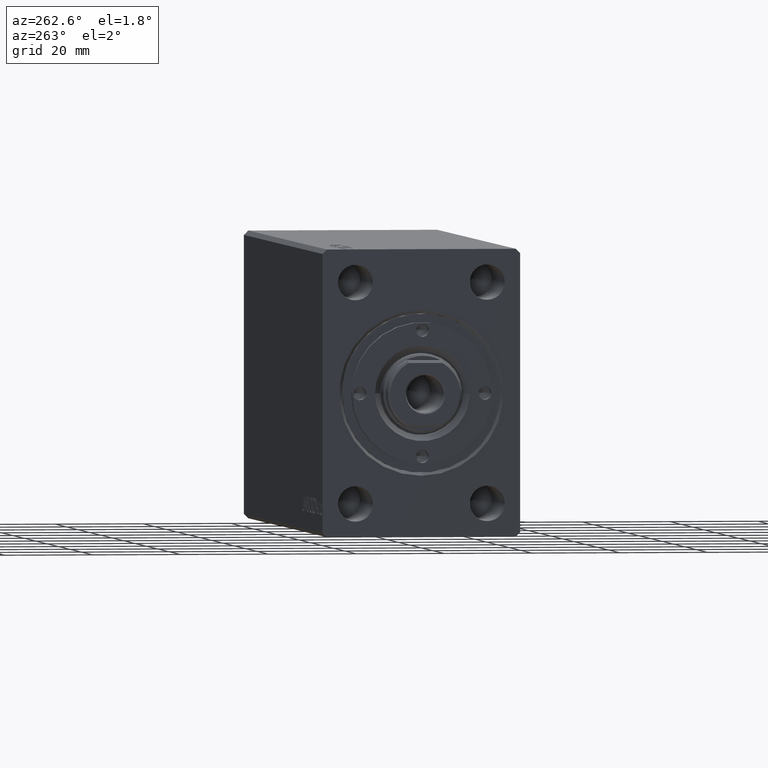
[diagram: clean part render]
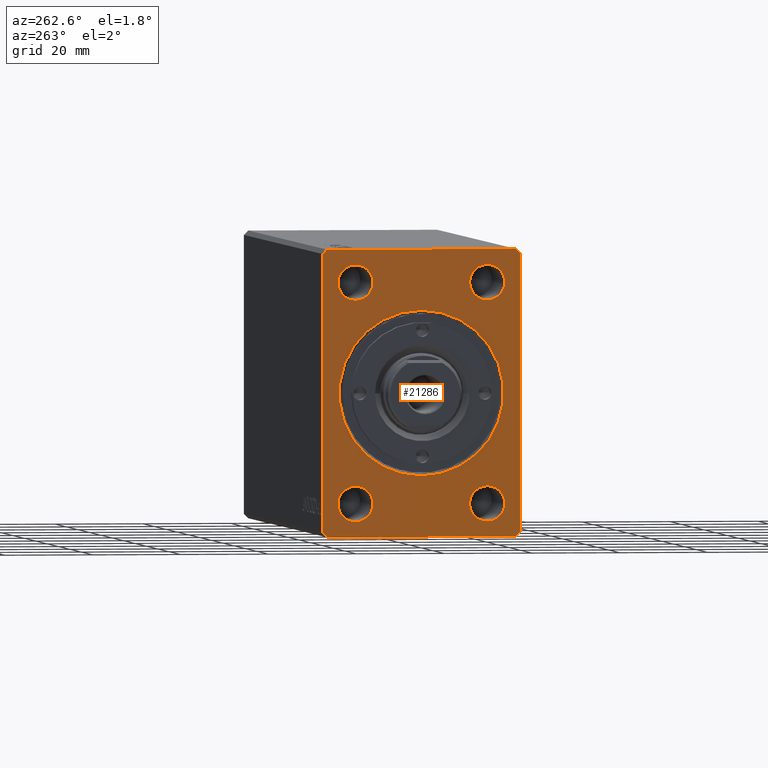
[diagram: same view with one face highlighted and labeled with its STEP entity id]
A machine part, auxiliary view. The second image highlights one B-rep face of the part: STEP entity #21286.
In plain terms, the highlighted planar face has unit normal (1, 0, 0).
Its self-contained STEP definition (entity closure, byte-faithful):
#58 = CIRCLE ( 'NONE', #15715, 18.69999999999999574 ) ;
#239 = LINE ( 'NONE', #41518, #13561 ) ;
#591 = PLANE ( 'NONE',  #6316 ) ;
#715 = CARTESIAN_POINT ( 'NONE',  ( 0.000000000000000000, -22.50000000000001776, 31.50000000000000000 ) ) ;
#2282 = DIRECTION ( 'NONE',  ( 0.000000000000000000, 0.000000000000000000, 1.000000000000000000 ) ) ;
#2330 = EDGE_CURVE ( 'NONE', #8919, #9233, #41937, .T. ) ;
#2888 = CIRCLE ( 'NONE', #27800, 4.000000000000000000 ) ;
#3978 = CARTESIAN_POINT ( 'NONE',  ( 3.061616997868395467E-16, -14.99999999999999645, 28.99999999999999645 ) ) ;
#4094 = CARTESIAN_POINT ( 'NONE',  ( 0.000000000000000000, -21.50000000000001776, -32.50000000000000711 ) ) ;
#4651 = LINE ( 'NONE', #25161, #35643 ) ;
#5145 = CARTESIAN_POINT ( 'NONE',  ( 3.061616997868395467E-16, 15.00000000000000355, 29.00000000000000000 ) ) ;
#5273 = EDGE_CURVE ( 'NONE', #25978, #36808, #29590, .T. ) ;
#6093 = CARTESIAN_POINT ( 'NONE',  ( 0.000000000000000000, 2.290089514405549716E-15, -18.69999999999999574 ) ) ;
#6266 = EDGE_CURVE ( 'NONE', #36808, #31023, #20915, .T. ) ;
#6316 = AXIS2_PLACEMENT_3D ( 'NONE', #27371, #20906, #34734 ) ;
#7111 = CIRCLE ( 'NONE', #27070, 4.000000000000000000 ) ;
#7204 = EDGE_CURVE ( 'NONE', #21809, #29926, #31218, .T. ) ;
#7302 = CARTESIAN_POINT ( 'NONE',  ( 0.000000000000000000, 21.49999999999999645, 32.50000000000000000 ) ) ;
#7731 = VERTEX_POINT ( 'NONE', #17903 ) ;
#8019 = CARTESIAN_POINT ( 'NONE',  ( 3.061616997868395467E-16, -14.99999999999999645, -24.99999999999999645 ) ) ;
#8089 = EDGE_LOOP ( 'NONE', ( #18558, #17726 ) ) ;
#8135 = VERTEX_POINT ( 'NONE', #14065 ) ;
#8270 = DIRECTION ( 'NONE',  ( -1.000000000000000000, -0.000000000000000000, -0.000000000000000000 ) ) ;
#8362 = CARTESIAN_POINT ( 'NONE',  ( 3.061616997868395467E-16, 15.00000000000000355, 25.00000000000000000 ) ) ;
#8386 = CARTESIAN_POINT ( 'NONE',  ( 0.000000000000000000, 21.49999999999999645, -32.50000000000000000 ) ) ;
#8811 = EDGE_LOOP ( 'NONE', ( #37486, #33787 ) ) ;
#8846 = CARTESIAN_POINT ( 'NONE',  ( 0.000000000000000000, 22.49999999999999645, 31.50000000000000000 ) ) ;
#8919 = VERTEX_POINT ( 'NONE', #42363 ) ;
#8935 = LINE ( 'NONE', #38856, #22568 ) ;
#9233 = VERTEX_POINT ( 'NONE', #6093 ) ;
#9284 = EDGE_CURVE ( 'NONE', #8135, #24488, #38963, .T. ) ;
#10024 = ORIENTED_EDGE ( 'NONE', *, *, #17495, .F. ) ;
#10412 = FACE_BOUND ( 'NONE', #8811, .T. ) ;
#10698 = CARTESIAN_POINT ( 'NONE',  ( 3.061616997868395467E-16, -14.99999999999999645, -24.99999999999999645 ) ) ;
#11287 = DIRECTION ( 'NONE',  ( 0.000000000000000000, 0.000000000000000000, 1.000000000000000000 ) ) ;
#11341 = ORIENTED_EDGE ( 'NONE', *, *, #12925, .F. ) ;
#11522 = EDGE_CURVE ( 'NONE', #29209, #8135, #17463, .T. ) ;
#11613 = EDGE_CURVE ( 'NONE', #23785, #35706, #19849, .T. ) ;
#11824 = ORIENTED_EDGE ( 'NONE', *, *, #35772, .F. ) ;
#11996 = DIRECTION ( 'NONE',  ( 0.000000000000000000, 0.000000000000000000, 1.000000000000000000 ) ) ;
#12241 = AXIS2_PLACEMENT_3D ( 'NONE', #13884, #27692, #41750 ) ;
#12292 = CIRCLE ( 'NONE', #32255, 4.000000000000000000 ) ;
#12773 = VERTEX_POINT ( 'NONE', #13248 ) ;
#12925 = EDGE_CURVE ( 'NONE', #31023, #12773, #8935, .T. ) ;
#13194 = CARTESIAN_POINT ( 'NONE',  ( 3.061616997868395467E-16, -14.99999999999999645, -20.99999999999999645 ) ) ;
#13248 = CARTESIAN_POINT ( 'NONE',  ( 0.000000000000000000, -22.50000000000001776, 31.50000000000000000 ) ) ;
#13561 = VECTOR ( 'NONE', #24547, 1000.000000000000114 ) ;
#13652 = ORIENTED_EDGE ( 'NONE', *, *, #9284, .F. ) ;
#13884 = CARTESIAN_POINT ( 'NONE',  ( 3.061616997868395467E-16, -14.99999999999999645, 24.99999999999999645 ) ) ;
#13986 = FACE_BOUND ( 'NONE', #27983, .T. ) ;
#14065 = CARTESIAN_POINT ( 'NONE',  ( 0.000000000000000000, 21.49999999999999645, -32.50000000000000000 ) ) ;
#14095 = CARTESIAN_POINT ( 'NONE',  ( 0.000000000000000000, 22.49999999999999645, -31.50000000000000000 ) ) ;
#14647 = EDGE_LOOP ( 'NONE', ( #35115, #11824 ) ) ;
#14870 = DIRECTION ( 'NONE',  ( 0.000000000000000000, -1.000000000000000000, 0.000000000000000000 ) ) ;
#15100 = CIRCLE ( 'NONE', #12241, 4.000000000000000000 ) ;
#15715 = AXIS2_PLACEMENT_3D ( 'NONE', #42332, #18032, #32508 ) ;
#15829 = ORIENTED_EDGE ( 'NONE', *, *, #6266, .F. ) ;
#16229 = CARTESIAN_POINT ( 'NONE',  ( 0.000000000000000000, 0.000000000000000000, 0.000000000000000000 ) ) ;
#16280 = VECTOR ( 'NONE', #31077, 1000.000000000000000 ) ;
#16319 = CARTESIAN_POINT ( 'NONE',  ( 3.061616997868395467E-16, 15.00000000000000355, 25.00000000000000000 ) ) ;
#16516 = ORIENTED_EDGE ( 'NONE', *, *, #26750, .F. ) ;
#16614 = AXIS2_PLACEMENT_3D ( 'NONE', #17849, #31463, #20979 ) ;
#16833 = CARTESIAN_POINT ( 'NONE',  ( 3.061616997868395467E-16, 15.00000000000000355, -20.99999999999999289 ) ) ;
#17161 = AXIS2_PLACEMENT_3D ( 'NONE', #28733, #42117, #11996 ) ;
#17463 = LINE ( 'NONE', #4094, #16280 ) ;
#17495 = EDGE_CURVE ( 'NONE', #40728, #19333, #2888, .T. ) ;
#17726 = ORIENTED_EDGE ( 'NONE', *, *, #27117, .F. ) ;
#17849 = CARTESIAN_POINT ( 'NONE',  ( 3.061616997868395467E-16, 15.00000000000000355, -24.99999999999999289 ) ) ;
#17893 = LINE ( 'NONE', #715, #31527 ) ;
#17903 = CARTESIAN_POINT ( 'NONE',  ( 3.061616997868395467E-16, 15.00000000000000355, -28.99999999999999289 ) ) ;
#18032 = DIRECTION ( 'NONE',  ( 1.000000000000000000, 0.000000000000000000, 0.000000000000000000 ) ) ;
#18558 = ORIENTED_EDGE ( 'NONE', *, *, #11613, .F. ) ;
#18891 = VECTOR ( 'NONE', #39636, 1000.000000000000114 ) ;
#19333 = VERTEX_POINT ( 'NONE', #3978 ) ;
#19578 = DIRECTION ( 'NONE',  ( 1.000000000000000000, 0.000000000000000000, 0.000000000000000000 ) ) ;
#19662 = ORIENTED_EDGE ( 'NONE', *, *, #5273, .F. ) ;
#19670 = ORIENTED_EDGE ( 'NONE', *, *, #11522, .F. ) ;
#19849 = CIRCLE ( 'NONE', #41904, 4.000000000000000000 ) ;
#19880 = CARTESIAN_POINT ( 'NONE',  ( 3.061616997868395467E-16, 15.00000000000000355, 21.00000000000000000 ) ) ;
#20906 = DIRECTION ( 'NONE',  ( 1.000000000000000000, 0.000000000000000000, 0.000000000000000000 ) ) ;
#20915 = LINE ( 'NONE', #7302, #42165 ) ;
#20979 = DIRECTION ( 'NONE',  ( 0.000000000000000000, 0.000000000000000000, 1.000000000000000000 ) ) ;
#21286 = ADVANCED_FACE ( 'NONE', ( #24898, #10412, #34072, #13986, #28023, #27575 ), #591, .F. ) ;
#21809 = VERTEX_POINT ( 'NONE', #36216 ) ;
#22003 = DIRECTION ( 'NONE',  ( 0.000000000000000000, 0.7071067811865474617, 0.7071067811865474617 ) ) ;
#22568 = VECTOR ( 'NONE', #35506, 1000.000000000000114 ) ;
#22664 = DIRECTION ( 'NONE',  ( 0.000000000000000000, 0.000000000000000000, 1.000000000000000000 ) ) ;
#23038 = CARTESIAN_POINT ( 'NONE',  ( 3.061616997868395467E-16, -14.99999999999999645, 20.99999999999999645 ) ) ;
#23456 = ORIENTED_EDGE ( 'NONE', *, *, #28147, .F. ) ;
#23586 = DIRECTION ( 'NONE',  ( 0.000000000000000000, 0.000000000000000000, -1.000000000000000000 ) ) ;
#23785 = VERTEX_POINT ( 'NONE', #5145 ) ;
#24307 = DIRECTION ( 'NONE',  ( 0.000000000000000000, 0.000000000000000000, 1.000000000000000000 ) ) ;
#24380 = EDGE_CURVE ( 'NONE', #19333, #40728, #15100, .T. ) ;
#24488 = VERTEX_POINT ( 'NONE', #14095 ) ;
#24547 = DIRECTION ( 'NONE',  ( 0.000000000000000000, 0.7071067811865451302, -0.7071067811865500152 ) ) ;
#24886 = DIRECTION ( 'NONE',  ( -1.000000000000000000, -0.000000000000000000, -0.000000000000000000 ) ) ;
#24898 = FACE_BOUND ( 'NONE', #8089, .T. ) ;
#25161 = CARTESIAN_POINT ( 'NONE',  ( 0.000000000000000000, 22.49999999999999645, -31.50000000000000000 ) ) ;
#25978 = VERTEX_POINT ( 'NONE', #28935 ) ;
#26091 = ORIENTED_EDGE ( 'NONE', *, *, #37901, .T. ) ;
#26750 = EDGE_CURVE ( 'NONE', #28942, #29209, #239, .T. ) ;
#26931 = CARTESIAN_POINT ( 'NONE',  ( 0.000000000000000000, -21.50000000000001421, 32.50000000000000000 ) ) ;
#27050 = AXIS2_PLACEMENT_3D ( 'NONE', #16229, #19578, #23586 ) ;
#27070 = AXIS2_PLACEMENT_3D ( 'NONE', #8362, #24886, #11287 ) ;
#27117 = EDGE_CURVE ( 'NONE', #35706, #23785, #7111, .T. ) ;
#27371 = CARTESIAN_POINT ( 'NONE',  ( 0.000000000000000000, 0.000000000000000000, 0.000000000000000000 ) ) ;
#27575 = FACE_OUTER_BOUND ( 'NONE', #30327, .T. ) ;
#27692 = DIRECTION ( 'NONE',  ( -1.000000000000000000, -0.000000000000000000, -0.000000000000000000 ) ) ;
#27800 = AXIS2_PLACEMENT_3D ( 'NONE', #42632, #8270, #36378 ) ;
#27983 = EDGE_LOOP ( 'NONE', ( #31554, #10024 ) ) ;
#28023 = FACE_BOUND ( 'NONE', #43834, .T. ) ;
#28147 = EDGE_CURVE ( 'NONE', #24488, #25978, #4651, .T. ) ;
#28552 = VERTEX_POINT ( 'NONE', #16833 ) ;
#28733 = CARTESIAN_POINT ( 'NONE',  ( 3.061616997868395467E-16, 15.00000000000000355, -24.99999999999999289 ) ) ;
#28935 = CARTESIAN_POINT ( 'NONE',  ( 0.000000000000000000, 22.49999999999999645, 31.50000000000000000 ) ) ;
#28942 = VERTEX_POINT ( 'NONE', #41967 ) ;
#29209 = VERTEX_POINT ( 'NONE', #38584 ) ;
#29590 = LINE ( 'NONE', #8846, #18891 ) ;
#29717 = ORIENTED_EDGE ( 'NONE', *, *, #2330, .T. ) ;
#29782 = AXIS2_PLACEMENT_3D ( 'NONE', #8019, #32485, #22664 ) ;
#29926 = VERTEX_POINT ( 'NONE', #13194 ) ;
#30327 = EDGE_LOOP ( 'NONE', ( #19662, #23456, #13652, #19670, #16516, #37388, #11341, #15829 ) ) ;
#31023 = VERTEX_POINT ( 'NONE', #26931 ) ;
#31077 = DIRECTION ( 'NONE',  ( 0.000000000000000000, 1.000000000000000000, 1.613696256722610912E-16 ) ) ;
#31218 = CIRCLE ( 'NONE', #29782, 4.000000000000000000 ) ;
#31463 = DIRECTION ( 'NONE',  ( -1.000000000000000000, -0.000000000000000000, -0.000000000000000000 ) ) ;
#31505 = DIRECTION ( 'NONE',  ( 0.000000000000000000, 5.507058653894625853E-17, -1.000000000000000000 ) ) ;
#31527 = VECTOR ( 'NONE', #31505, 1000.000000000000000 ) ;
#31554 = ORIENTED_EDGE ( 'NONE', *, *, #24380, .F. ) ;
#32255 = AXIS2_PLACEMENT_3D ( 'NONE', #10698, #34578, #24307 ) ;
#32287 = CARTESIAN_POINT ( 'NONE',  ( 0.000000000000000000, 21.49999999999999645, 32.50000000000000000 ) ) ;
#32485 = DIRECTION ( 'NONE',  ( -1.000000000000000000, -0.000000000000000000, -0.000000000000000000 ) ) ;
#32508 = DIRECTION ( 'NONE',  ( 0.000000000000000000, 0.000000000000000000, -1.000000000000000000 ) ) ;
#32994 = CIRCLE ( 'NONE', #16614, 4.000000000000000000 ) ;
#33536 = CIRCLE ( 'NONE', #17161, 4.000000000000000000 ) ;
#33787 = ORIENTED_EDGE ( 'NONE', *, *, #7204, .F. ) ;
#34072 = FACE_BOUND ( 'NONE', #14647, .T. ) ;
#34578 = DIRECTION ( 'NONE',  ( -1.000000000000000000, -0.000000000000000000, -0.000000000000000000 ) ) ;
#34631 = EDGE_CURVE ( 'NONE', #12773, #28942, #17893, .T. ) ;
#34734 = DIRECTION ( 'NONE',  ( 0.000000000000000000, 0.000000000000000000, -1.000000000000000000 ) ) ;
#34972 = EDGE_CURVE ( 'NONE', #29926, #21809, #12292, .T. ) ;
#35115 = ORIENTED_EDGE ( 'NONE', *, *, #37795, .F. ) ;
#35506 = DIRECTION ( 'NONE',  ( 0.000000000000000000, -0.7071067811865474617, -0.7071067811865474617 ) ) ;
#35643 = VECTOR ( 'NONE', #35650, 1000.000000000000000 ) ;
#35650 = DIRECTION ( 'NONE',  ( 0.000000000000000000, 0.000000000000000000, 1.000000000000000000 ) ) ;
#35706 = VERTEX_POINT ( 'NONE', #19880 ) ;
#35772 = EDGE_CURVE ( 'NONE', #7731, #28552, #32994, .T. ) ;
#36216 = CARTESIAN_POINT ( 'NONE',  ( 3.061616997868395467E-16, -14.99999999999999645, -28.99999999999999645 ) ) ;
#36378 = DIRECTION ( 'NONE',  ( 0.000000000000000000, 0.000000000000000000, 1.000000000000000000 ) ) ;
#36808 = VERTEX_POINT ( 'NONE', #32287 ) ;
#37388 = ORIENTED_EDGE ( 'NONE', *, *, #34631, .F. ) ;
#37486 = ORIENTED_EDGE ( 'NONE', *, *, #34972, .F. ) ;
#37795 = EDGE_CURVE ( 'NONE', #28552, #7731, #33536, .T. ) ;
#37901 = EDGE_CURVE ( 'NONE', #9233, #8919, #58, .T. ) ;
#38584 = CARTESIAN_POINT ( 'NONE',  ( 0.000000000000000000, -21.50000000000001776, -32.50000000000000711 ) ) ;
#38856 = CARTESIAN_POINT ( 'NONE',  ( 0.000000000000000000, -21.50000000000001421, 32.50000000000000000 ) ) ;
#38963 = LINE ( 'NONE', #8386, #42991 ) ;
#39636 = DIRECTION ( 'NONE',  ( 0.000000000000000000, -0.7071067811865474617, 0.7071067811865474617 ) ) ;
#40728 = VERTEX_POINT ( 'NONE', #23038 ) ;
#41518 = CARTESIAN_POINT ( 'NONE',  ( 0.000000000000000000, -22.50000000000001421, -31.50000000000000711 ) ) ;
#41750 = DIRECTION ( 'NONE',  ( 0.000000000000000000, 0.000000000000000000, 1.000000000000000000 ) ) ;
#41904 = AXIS2_PLACEMENT_3D ( 'NONE', #16319, #43096, #2282 ) ;
#41937 = CIRCLE ( 'NONE', #27050, 18.69999999999999574 ) ;
#41967 = CARTESIAN_POINT ( 'NONE',  ( 0.000000000000000000, -22.50000000000001421, -31.50000000000000711 ) ) ;
#42117 = DIRECTION ( 'NONE',  ( -1.000000000000000000, -0.000000000000000000, -0.000000000000000000 ) ) ;
#42165 = VECTOR ( 'NONE', #14870, 1000.000000000000000 ) ;
#42332 = CARTESIAN_POINT ( 'NONE',  ( 0.000000000000000000, 0.000000000000000000, 0.000000000000000000 ) ) ;
#42363 = CARTESIAN_POINT ( 'NONE',  ( 0.000000000000000000, 0.000000000000000000, 18.69999999999999574 ) ) ;
#42632 = CARTESIAN_POINT ( 'NONE',  ( 3.061616997868395467E-16, -14.99999999999999645, 24.99999999999999645 ) ) ;
#42991 = VECTOR ( 'NONE', #22003, 1000.000000000000114 ) ;
#43096 = DIRECTION ( 'NONE',  ( -1.000000000000000000, -0.000000000000000000, -0.000000000000000000 ) ) ;
#43834 = EDGE_LOOP ( 'NONE', ( #29717, #26091 ) ) ;